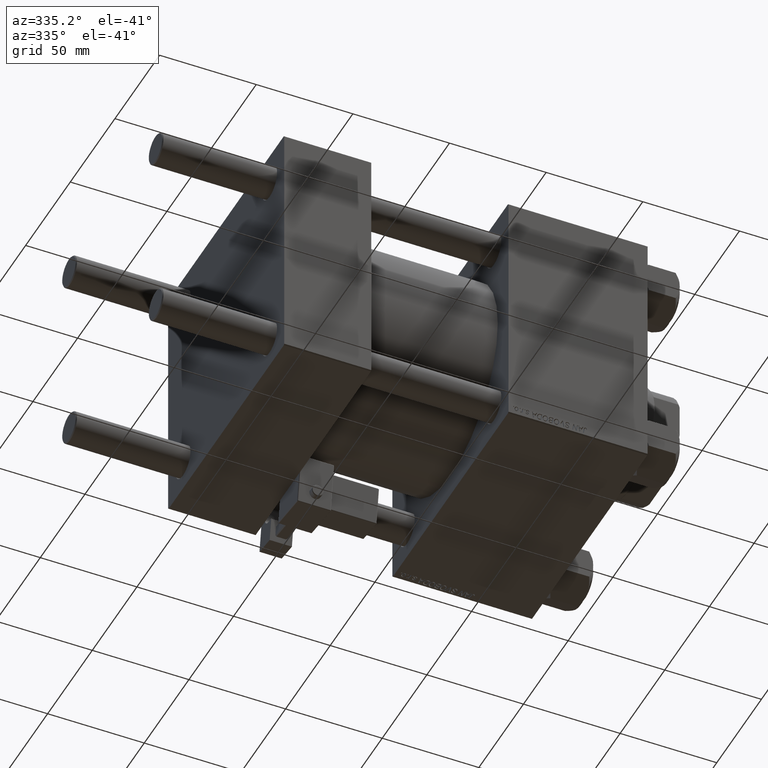
[diagram: clean part render]
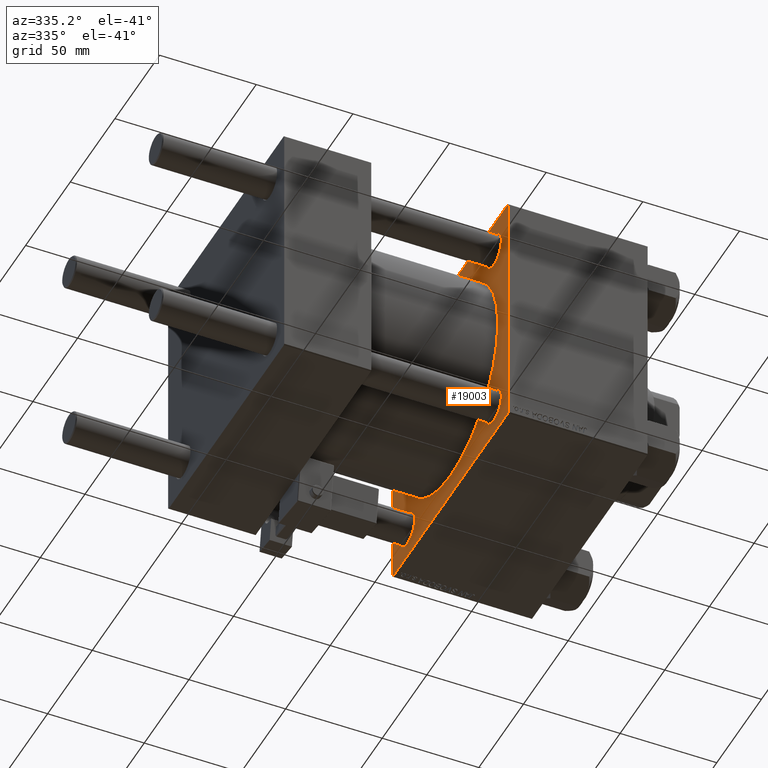
[diagram: same view with one face highlighted and labeled with its STEP entity id]
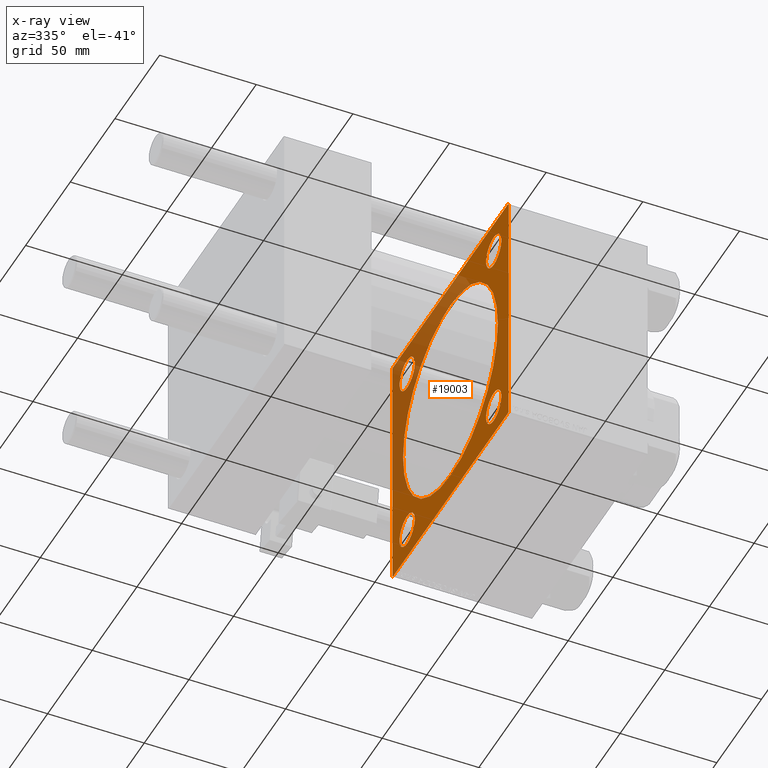
[diagram: x-ray of the same camera — body ghosted, the highlighted face saturated]
A machine part, auxiliary view. The second image highlights one B-rep face of the part: STEP entity #19003.
The next image is the same camera in x-ray: the body ghosted, the highlighted face saturated — about 31% of this face is hidden behind the body in this view.
In plain terms, the highlighted planar face has unit normal (-1, 0, 0).
Its self-contained STEP definition (entity closure, byte-faithful):
#377 = DIRECTION ( 'NONE',  ( 0.000000000000000000, -0.7071067811865279218, 0.7071067811865672237 ) ) ;
#697 = CARTESIAN_POINT ( 'NONE',  ( 115.9999999999999858, -48.44999999999999574, -39.95000000000007390 ) ) ;
#743 = CARTESIAN_POINT ( 'NONE',  ( 115.9999999999999858, 48.45000000000000995, 48.45000000000001705 ) ) ;
#1321 = ORIENTED_EDGE ( 'NONE', *, *, #47095, .T. ) ;
#1612 = EDGE_CURVE ( 'NONE', #12958, #27834, #49670, .T. ) ;
#1652 = ORIENTED_EDGE ( 'NONE', *, *, #37490, .T. ) ;
#1811 = ORIENTED_EDGE ( 'NONE', *, *, #2811, .T. ) ;
#2229 = CARTESIAN_POINT ( 'NONE',  ( 115.9999999999999858, 65.00000000000002842, 65.00000000000001421 ) ) ;
#2380 = CARTESIAN_POINT ( 'NONE',  ( 115.9999999999999858, 0.000000000000000000, 0.000000000000000000 ) ) ;
#2500 = CARTESIAN_POINT ( 'NONE',  ( 115.9999999999999858, -48.44999999999999574, 39.95000000000007390 ) ) ;
#2705 = EDGE_CURVE ( 'NONE', #41670, #49647, #19229, .T. ) ;
#2811 = EDGE_CURVE ( 'NONE', #43072, #47023, #24373, .T. ) ;
#2936 = CARTESIAN_POINT ( 'NONE',  ( 115.9999999999999858, -48.44999999999999574, -48.45000000000003126 ) ) ;
#3444 = ORIENTED_EDGE ( 'NONE', *, *, #7414, .T. ) ;
#3584 = CARTESIAN_POINT ( 'NONE',  ( 115.9999999999999858, 65.00000000000002842, 64.50000000000001421 ) ) ;
#3711 = EDGE_CURVE ( 'NONE', #41670, #35477, #4534, .T. ) ;
#3962 = EDGE_LOOP ( 'NONE', ( #30489, #24653 ) ) ;
#4446 = EDGE_CURVE ( 'NONE', #47023, #43072, #37121, .T. ) ;
#4504 = CARTESIAN_POINT ( 'NONE',  ( 115.9999999999999858, 6.490628035480973107E-15, -53.00000000000000711 ) ) ;
#4534 = LINE ( 'NONE', #11505, #43928 ) ;
#5263 = EDGE_CURVE ( 'NONE', #50199, #35477, #48655, .T. ) ;
#5313 = VERTEX_POINT ( 'NONE', #3584 ) ;
#5369 = CARTESIAN_POINT ( 'NONE',  ( 115.9999999999999858, 64.50000000000002842, -64.99999999999998579 ) ) ;
#5507 = ORIENTED_EDGE ( 'NONE', *, *, #31397, .T. ) ;
#5944 = DIRECTION ( 'NONE',  ( 1.000000000000000000, -0.000000000000000000, 0.000000000000000000 ) ) ;
#6600 = EDGE_CURVE ( 'NONE', #27834, #12958, #49859, .T. ) ;
#6665 = DIRECTION ( 'NONE',  ( 0.000000000000000000, 0.000000000000000000, 1.000000000000000000 ) ) ;
#7414 = EDGE_CURVE ( 'NONE', #5313, #29976, #22666, .T. ) ;
#7453 = VERTEX_POINT ( 'NONE', #10192 ) ;
#7489 = CARTESIAN_POINT ( 'NONE',  ( 115.9999999999999858, 64.75000000000181899, 64.74999999999822364 ) ) ;
#7826 = CARTESIAN_POINT ( 'NONE',  ( 115.9999999999999858, -64.75000000000180478, -64.74999999999820943 ) ) ;
#7849 = EDGE_CURVE ( 'NONE', #20430, #21296, #36414, .T. ) ;
#8008 = EDGE_CURVE ( 'NONE', #42944, #50199, #48494, .T. ) ;
#8272 = ORIENTED_EDGE ( 'NONE', *, *, #5263, .T. ) ;
#9569 = CARTESIAN_POINT ( 'NONE',  ( 115.9999999999999858, -48.44999999999999574, 56.94999999999998153 ) ) ;
#9780 = VERTEX_POINT ( 'NONE', #2500 ) ;
#9790 = FACE_OUTER_BOUND ( 'NONE', #38407, .T. ) ;
#10147 = CARTESIAN_POINT ( 'NONE',  ( 115.9999999999999858, -64.99999999999998579, 64.50000000000008527 ) ) ;
#10192 = CARTESIAN_POINT ( 'NONE',  ( 115.9999999999999858, 64.50000000000005684, 65.00000000000001421 ) ) ;
#10304 = CARTESIAN_POINT ( 'NONE',  ( 115.9999999999999858, 48.45000000000000995, -39.95000000000005969 ) ) ;
#10390 = CIRCLE ( 'NONE', #51885, 8.499999999999952038 ) ;
#10394 = DIRECTION ( 'NONE',  ( 0.000000000000000000, 0.000000000000000000, 1.000000000000000000 ) ) ;
#10867 = PLANE ( 'NONE',  #35362 ) ;
#11453 = ORIENTED_EDGE ( 'NONE', *, *, #29890, .T. ) ;
#11505 = CARTESIAN_POINT ( 'NONE',  ( 115.9999999999999858, -64.99999999999998579, 65.00000000000000000 ) ) ;
#12302 = DIRECTION ( 'NONE',  ( 0.000000000000000000, 0.000000000000000000, -1.000000000000000000 ) ) ;
#12416 = DIRECTION ( 'NONE',  ( 0.000000000000000000, 0.000000000000000000, 1.000000000000000000 ) ) ;
#12431 = AXIS2_PLACEMENT_3D ( 'NONE', #27619, #35332, #27366 ) ;
#12643 = LINE ( 'NONE', #32563, #13390 ) ;
#12689 = CARTESIAN_POINT ( 'NONE',  ( 115.9999999999999858, 0.000000000000000000, 53.00000000000000711 ) ) ;
#12958 = VERTEX_POINT ( 'NONE', #34042 ) ;
#13141 = DIRECTION ( 'NONE',  ( -0.000000000000000000, -0.7071067811865671127, -0.7071067811865279218 ) ) ;
#13289 = VECTOR ( 'NONE', #43391, 999.9999999999998863 ) ;
#13355 = CIRCLE ( 'NONE', #45552, 8.499999999999952038 ) ;
#13390 = VECTOR ( 'NONE', #48719, 1000.000000000000000 ) ;
#13715 = VECTOR ( 'NONE', #23684, 1000.000000000000000 ) ;
#13777 = DIRECTION ( 'NONE',  ( -1.000000000000000000, 0.000000000000000000, -0.000000000000000000 ) ) ;
#14317 = FACE_BOUND ( 'NONE', #3962, .T. ) ;
#14823 = ORIENTED_EDGE ( 'NONE', *, *, #17595, .T. ) ;
#15460 = EDGE_CURVE ( 'NONE', #39275, #9780, #49639, .T. ) ;
#15928 = DIRECTION ( 'NONE',  ( 1.000000000000000000, -0.000000000000000000, 0.000000000000000000 ) ) ;
#15966 = AXIS2_PLACEMENT_3D ( 'NONE', #43909, #52095, #12302 ) ;
#16769 = CARTESIAN_POINT ( 'NONE',  ( 115.9999999999999858, -64.50000000000002842, -65.00000000000001421 ) ) ;
#17004 = DIRECTION ( 'NONE',  ( 1.000000000000000000, 0.000000000000000000, 0.000000000000000000 ) ) ;
#17595 = EDGE_CURVE ( 'NONE', #45612, #36707, #39572, .T. ) ;
#17893 = EDGE_LOOP ( 'NONE', ( #51167, #1321 ) ) ;
#17931 = LINE ( 'NONE', #45259, #35056 ) ;
#18395 = AXIS2_PLACEMENT_3D ( 'NONE', #51289, #5944, #46260 ) ;
#18416 = DIRECTION ( 'NONE',  ( 0.000000000000000000, 0.000000000000000000, -1.000000000000000000 ) ) ;
#18545 = CARTESIAN_POINT ( 'NONE',  ( 115.9999999999999858, -64.50000000000008527, 65.00000000000000000 ) ) ;
#19003 = ADVANCED_FACE ( 'NONE', ( #26521, #47206, #50108, #14317, #34751, #9790 ), #10867, .T. ) ;
#19153 = AXIS2_PLACEMENT_3D ( 'NONE', #24375, #40826, #12416 ) ;
#19187 = CARTESIAN_POINT ( 'NONE',  ( 115.9999999999999858, 48.45000000000000995, 56.94999999999996732 ) ) ;
#19229 = LINE ( 'NONE', #39402, #13289 ) ;
#20430 = VERTEX_POINT ( 'NONE', #19187 ) ;
#21296 = VERTEX_POINT ( 'NONE', #26098 ) ;
#22666 = LINE ( 'NONE', #2229, #28756 ) ;
#23684 = DIRECTION ( 'NONE',  ( 0.000000000000000000, 0.7071067811865279218, -0.7071067811865671127 ) ) ;
#24373 = CIRCLE ( 'NONE', #31158, 53.00000000000000711 ) ;
#24375 = CARTESIAN_POINT ( 'NONE',  ( 115.9999999999999858, -48.44999999999999574, 48.45000000000003126 ) ) ;
#24653 = ORIENTED_EDGE ( 'NONE', *, *, #1612, .T. ) ;
#25335 = AXIS2_PLACEMENT_3D ( 'NONE', #2936, #47509, #6665 ) ;
#26098 = CARTESIAN_POINT ( 'NONE',  ( 115.9999999999999858, 48.45000000000000995, 39.95000000000005969 ) ) ;
#26521 = FACE_BOUND ( 'NONE', #17893, .T. ) ;
#26834 = CARTESIAN_POINT ( 'NONE',  ( 115.9999999999999858, 48.45000000000000995, 48.45000000000001705 ) ) ;
#27056 = DIRECTION ( 'NONE',  ( -0.000000000000000000, 0.000000000000000000, 1.000000000000000000 ) ) ;
#27102 = VECTOR ( 'NONE', #33346, 1000.000000000000000 ) ;
#27366 = DIRECTION ( 'NONE',  ( 0.000000000000000000, 0.000000000000000000, 1.000000000000000000 ) ) ;
#27619 = CARTESIAN_POINT ( 'NONE',  ( 115.9999999999999858, -48.44999999999999574, -48.45000000000003126 ) ) ;
#27834 = VERTEX_POINT ( 'NONE', #697 ) ;
#27861 = CARTESIAN_POINT ( 'NONE',  ( 115.9999999999999858, -48.44999999999999574, 48.45000000000003126 ) ) ;
#28756 = VECTOR ( 'NONE', #18416, 1000.000000000000000 ) ;
#28835 = ORIENTED_EDGE ( 'NONE', *, *, #2705, .T. ) ;
#29124 = DIRECTION ( 'NONE',  ( 1.000000000000000000, -0.000000000000000000, 0.000000000000000000 ) ) ;
#29890 = EDGE_CURVE ( 'NONE', #36707, #45612, #38231, .T. ) ;
#29976 = VERTEX_POINT ( 'NONE', #30108 ) ;
#30108 = CARTESIAN_POINT ( 'NONE',  ( 115.9999999999999858, 65.00000000000002842, -64.50000000000001421 ) ) ;
#30489 = ORIENTED_EDGE ( 'NONE', *, *, #6600, .T. ) ;
#31158 = AXIS2_PLACEMENT_3D ( 'NONE', #31434, #17004, #47609 ) ;
#31397 = EDGE_CURVE ( 'NONE', #7453, #5313, #43841, .T. ) ;
#31434 = CARTESIAN_POINT ( 'NONE',  ( 115.9999999999999858, 0.000000000000000000, 0.000000000000000000 ) ) ;
#32107 = DIRECTION ( 'NONE',  ( 0.000000000000000000, 0.000000000000000000, 1.000000000000000000 ) ) ;
#32344 = DIRECTION ( 'NONE',  ( 0.000000000000000000, 0.000000000000000000, 1.000000000000000000 ) ) ;
#32563 = CARTESIAN_POINT ( 'NONE',  ( 115.9999999999999858, 65.00000000000002842, 65.00000000000001421 ) ) ;
#33346 = DIRECTION ( 'NONE',  ( 0.000000000000000000, -1.000000000000000000, -2.135044278125300850E-16 ) ) ;
#34042 = CARTESIAN_POINT ( 'NONE',  ( 115.9999999999999858, -48.44999999999999574, -56.94999999999998153 ) ) ;
#34690 = ORIENTED_EDGE ( 'NONE', *, *, #8008, .T. ) ;
#34751 = FACE_BOUND ( 'NONE', #37537, .T. ) ;
#35056 = VECTOR ( 'NONE', #13141, 1000.000000000000000 ) ;
#35332 = DIRECTION ( 'NONE',  ( 1.000000000000000000, -0.000000000000000000, 0.000000000000000000 ) ) ;
#35362 = AXIS2_PLACEMENT_3D ( 'NONE', #2380, #13777, #27056 ) ;
#35477 = VERTEX_POINT ( 'NONE', #50072 ) ;
#36032 = ORIENTED_EDGE ( 'NONE', *, *, #7849, .T. ) ;
#36414 = CIRCLE ( 'NONE', #41485, 8.499999999999952038 ) ;
#36534 = AXIS2_PLACEMENT_3D ( 'NONE', #44743, #48963, #40516 ) ;
#36707 = VERTEX_POINT ( 'NONE', #49818 ) ;
#37121 = CIRCLE ( 'NONE', #15966, 53.00000000000000711 ) ;
#37490 = EDGE_CURVE ( 'NONE', #21296, #20430, #10390, .T. ) ;
#37537 = EDGE_LOOP ( 'NONE', ( #1811, #50612 ) ) ;
#38231 = CIRCLE ( 'NONE', #36534, 8.499999999999952038 ) ;
#38407 = EDGE_LOOP ( 'NONE', ( #34690, #8272, #47898, #28835, #43901, #5507, #3444, #40550 ) ) ;
#38694 = EDGE_CURVE ( 'NONE', #29976, #42944, #17931, .T. ) ;
#39275 = VERTEX_POINT ( 'NONE', #9569 ) ;
#39402 = CARTESIAN_POINT ( 'NONE',  ( 115.9999999999999858, -64.75000000000093792, 64.74999999999914735 ) ) ;
#39572 = CIRCLE ( 'NONE', #18395, 8.499999999999952038 ) ;
#40516 = DIRECTION ( 'NONE',  ( 0.000000000000000000, 0.000000000000000000, 1.000000000000000000 ) ) ;
#40550 = ORIENTED_EDGE ( 'NONE', *, *, #38694, .T. ) ;
#40811 = CARTESIAN_POINT ( 'NONE',  ( 115.9999999999999858, 65.00000000000002842, -64.99999999999998579 ) ) ;
#40826 = DIRECTION ( 'NONE',  ( 1.000000000000000000, -0.000000000000000000, 0.000000000000000000 ) ) ;
#41485 = AXIS2_PLACEMENT_3D ( 'NONE', #26834, #43036, #10394 ) ;
#41670 = VERTEX_POINT ( 'NONE', #10147 ) ;
#42041 = EDGE_LOOP ( 'NONE', ( #36032, #1652 ) ) ;
#42851 = EDGE_LOOP ( 'NONE', ( #14823, #11453 ) ) ;
#42944 = VERTEX_POINT ( 'NONE', #5369 ) ;
#43036 = DIRECTION ( 'NONE',  ( 1.000000000000000000, -0.000000000000000000, 0.000000000000000000 ) ) ;
#43072 = VERTEX_POINT ( 'NONE', #12689 ) ;
#43391 = DIRECTION ( 'NONE',  ( -0.000000000000000000, 0.7071067811865376918, 0.7071067811865574537 ) ) ;
#43841 = LINE ( 'NONE', #7489, #13715 ) ;
#43901 = ORIENTED_EDGE ( 'NONE', *, *, #48690, .F. ) ;
#43909 = CARTESIAN_POINT ( 'NONE',  ( 115.9999999999999858, 0.000000000000000000, 0.000000000000000000 ) ) ;
#43928 = VECTOR ( 'NONE', #52081, 1000.000000000000000 ) ;
#44743 = CARTESIAN_POINT ( 'NONE',  ( 115.9999999999999858, 48.45000000000000995, -48.45000000000001705 ) ) ;
#45259 = CARTESIAN_POINT ( 'NONE',  ( 115.9999999999999858, 64.74999999999822364, -64.75000000000180478 ) ) ;
#45552 = AXIS2_PLACEMENT_3D ( 'NONE', #27861, #15928, #32107 ) ;
#45612 = VERTEX_POINT ( 'NONE', #10304 ) ;
#46260 = DIRECTION ( 'NONE',  ( 0.000000000000000000, 0.000000000000000000, 1.000000000000000000 ) ) ;
#47023 = VERTEX_POINT ( 'NONE', #4504 ) ;
#47095 = EDGE_CURVE ( 'NONE', #9780, #39275, #13355, .T. ) ;
#47206 = FACE_BOUND ( 'NONE', #42041, .T. ) ;
#47509 = DIRECTION ( 'NONE',  ( 1.000000000000000000, -0.000000000000000000, 0.000000000000000000 ) ) ;
#47609 = DIRECTION ( 'NONE',  ( 0.000000000000000000, 0.000000000000000000, -1.000000000000000000 ) ) ;
#47898 = ORIENTED_EDGE ( 'NONE', *, *, #3711, .F. ) ;
#48494 = LINE ( 'NONE', #40811, #27102 ) ;
#48655 = LINE ( 'NONE', #7826, #50703 ) ;
#48690 = EDGE_CURVE ( 'NONE', #7453, #49647, #12643, .T. ) ;
#48719 = DIRECTION ( 'NONE',  ( 0.000000000000000000, -1.000000000000000000, -1.067522139062650425E-16 ) ) ;
#48963 = DIRECTION ( 'NONE',  ( 1.000000000000000000, -0.000000000000000000, 0.000000000000000000 ) ) ;
#49639 = CIRCLE ( 'NONE', #19153, 8.499999999999952038 ) ;
#49647 = VERTEX_POINT ( 'NONE', #18545 ) ;
#49670 = CIRCLE ( 'NONE', #12431, 8.499999999999952038 ) ;
#49818 = CARTESIAN_POINT ( 'NONE',  ( 115.9999999999999858, 48.45000000000000995, -56.94999999999996732 ) ) ;
#49859 = CIRCLE ( 'NONE', #25335, 8.499999999999952038 ) ;
#50072 = CARTESIAN_POINT ( 'NONE',  ( 115.9999999999999858, -64.99999999999998579, -64.50000000000002842 ) ) ;
#50108 = FACE_BOUND ( 'NONE', #42851, .T. ) ;
#50199 = VERTEX_POINT ( 'NONE', #16769 ) ;
#50612 = ORIENTED_EDGE ( 'NONE', *, *, #4446, .T. ) ;
#50703 = VECTOR ( 'NONE', #377, 1000.000000000000000 ) ;
#51167 = ORIENTED_EDGE ( 'NONE', *, *, #15460, .T. ) ;
#51289 = CARTESIAN_POINT ( 'NONE',  ( 115.9999999999999858, 48.45000000000000995, -48.45000000000001705 ) ) ;
#51885 = AXIS2_PLACEMENT_3D ( 'NONE', #743, #29124, #32344 ) ;
#52081 = DIRECTION ( 'NONE',  ( 0.000000000000000000, 0.000000000000000000, -1.000000000000000000 ) ) ;
#52095 = DIRECTION ( 'NONE',  ( 1.000000000000000000, 0.000000000000000000, 0.000000000000000000 ) ) ;